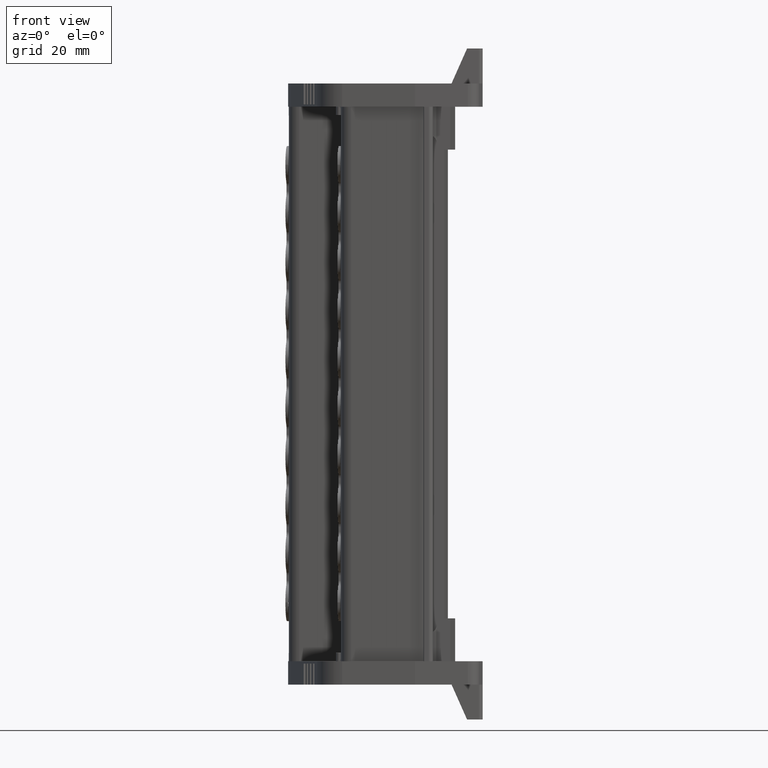
[diagram: clean part render]
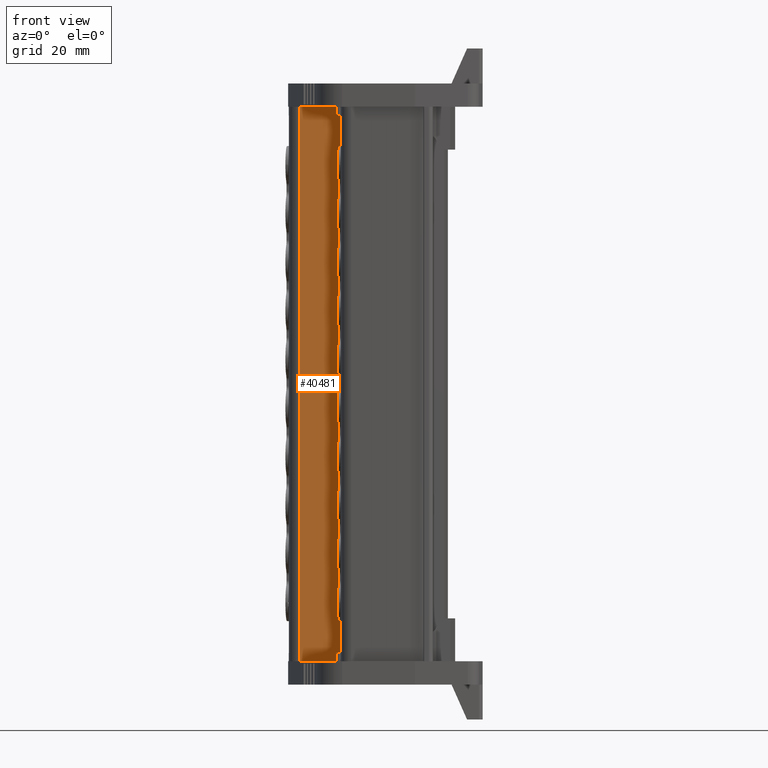
[diagram: same view with one face highlighted and labeled with its STEP entity id]
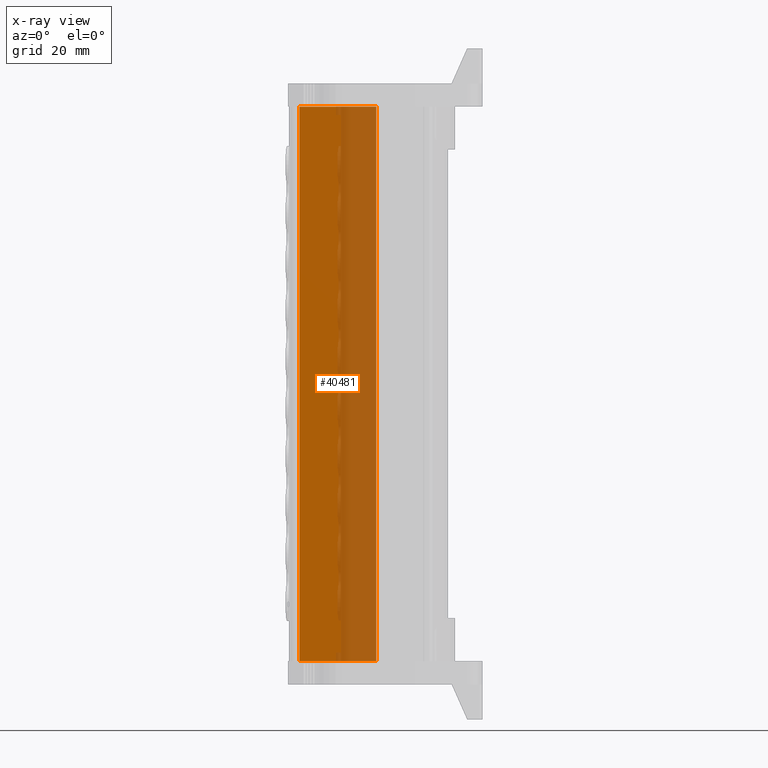
[diagram: x-ray of the same camera — body ghosted, the highlighted face saturated]
A machine part, front view. The second image highlights one B-rep face of the part: STEP entity #40481.
The next image is the same camera in x-ray: the body ghosted, the highlighted face saturated — about 50% of this face is hidden behind the body in this view.
In plain terms, the highlighted planar face has unit normal (-0.1045, -0.9945, -0).
Its self-contained STEP definition (entity closure, byte-faithful):
#6415 = EDGE_CURVE ( 'NONE', #58007, #57724, #38454, .T. ) ;
#6442 = EDGE_CURVE ( 'NONE', #57611, #57346, #38540, .T. ) ;
#6495 = EDGE_CURVE ( 'NONE', #57611, #57724, #38663, .T. ) ;
#9521 = EDGE_LOOP ( 'NONE', ( #57257, #57253, #57266, #57263 ) ) ;
#11844 = AXIS2_PLACEMENT_3D ( 'NONE', #24855, #24851, #24902 ) ;
#12329 = VECTOR ( 'NONE', #23922, 1000.000000000000000 ) ;
#23900 = LINE ( 'NONE', #23942, #12329 ) ;
#23922 = DIRECTION ( 'NONE',  ( -2.121574976562269900E-014, -2.018543754397309000E-013, 1.000000000000000000 ) ) ;
#23942 = CARTESIAN_POINT ( 'NONE',  ( 1888.992376186130100, 789.1854032770603500, 116.6204558807798200 ) ) ;
#24851 = DIRECTION ( 'NONE',  ( -0.1045284632676487800, -0.9945218953682738400, -2.029662457707718600E-013 ) ) ;
#24855 = CARTESIAN_POINT ( 'NONE',  ( 1877.527367093267200, 790.3904242900796400, 116.6204558807798200 ) ) ;
#24887 = FACE_OUTER_BOUND ( 'NONE', #9521, .T. ) ;
#24900 = PLANE ( 'NONE',  #11844 ) ;
#24902 = DIRECTION ( 'NONE',  ( 0.9945218953682738400, -0.1045284632676487800, 0.0000000000000000000 ) ) ;
#34424 = CARTESIAN_POINT ( 'NONE',  ( 1869.208938460071100, 791.2647263701773000, 148.5203038005998100 ) ) ;
#34679 = CARTESIAN_POINT ( 'NONE',  ( 1869.208938460073300, 791.2647263702061800, 5.998782997044097300 ) ) ;
#35129 = CARTESIAN_POINT ( 'NONE',  ( 1888.992376186132100, 789.1854032770828600, 5.998782997044471300 ) ) ;
#38425 = CARTESIAN_POINT ( 'NONE',  ( 1888.992376186132600, 789.1854032770828600, 5.998782997044410000 ) ) ;
#38454 = LINE ( 'NONE', #38425, #49141 ) ;
#38487 = DIRECTION ( 'NONE',  ( -0.9945218953682748400, 0.1045284632676387000, 0.0000000000000000000 ) ) ;
#38523 = CARTESIAN_POINT ( 'NONE',  ( 1869.208938460071100, 791.2647263701773000, 148.5203038005998100 ) ) ;
#38540 = LINE ( 'NONE', #38523, #49132 ) ;
#38542 = DIRECTION ( 'NONE',  ( 0.9945218953682748400, -0.1045284632676395700, 0.0000000000000000000 ) ) ;
#38663 = LINE ( 'NONE', #38708, #49243 ) ;
#38708 = CARTESIAN_POINT ( 'NONE',  ( 1869.208938460071500, 791.2647263701837800, 116.6204558807798200 ) ) ;
#38727 = DIRECTION ( 'NONE',  ( 2.121574976562269900E-014, 2.018543754397309000E-013, -1.000000000000000000 ) ) ;
#40481 = ADVANCED_FACE ( 'NONE', ( #24887 ), #24900, .T. ) ;
#40651 = EDGE_CURVE ( 'NONE', #58007, #57346, #23900, .T. ) ;
#49132 = VECTOR ( 'NONE', #38542, 1000.000000000000100 ) ;
#49141 = VECTOR ( 'NONE', #38487, 1000.000000000000200 ) ;
#49243 = VECTOR ( 'NONE', #38727, 1000.000000000000000 ) ;
#57253 = ORIENTED_EDGE ( 'NONE', *, *, #40651, .T. ) ;
#57257 = ORIENTED_EDGE ( 'NONE', *, *, #6415, .F. ) ;
#57263 = ORIENTED_EDGE ( 'NONE', *, *, #6495, .T. ) ;
#57266 = ORIENTED_EDGE ( 'NONE', *, *, #6442, .F. ) ;
#57346 = VERTEX_POINT ( 'NONE', #60842 ) ;
#57611 = VERTEX_POINT ( 'NONE', #34424 ) ;
#57724 = VERTEX_POINT ( 'NONE', #34679 ) ;
#58007 = VERTEX_POINT ( 'NONE', #35129 ) ;
#60842 = CARTESIAN_POINT ( 'NONE',  ( 1888.992376186129400, 789.1854032770539800, 148.5203038005998100 ) ) ;